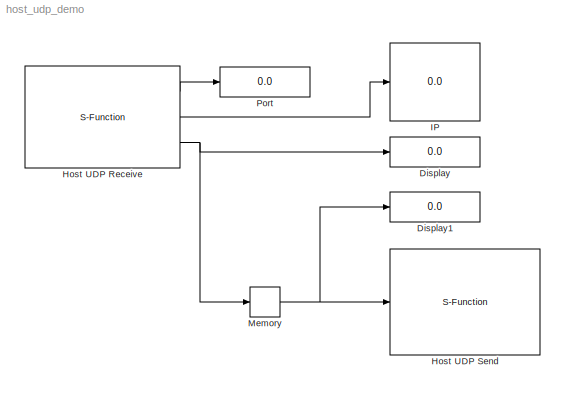
MODEL host_udp_demo
KIND model
BLOCK [Display] Display
  Decimation = 1
  Format = long
  Lockdown = off
  Ports = [1]
BLOCK [Display] Display1
  Decimation = 1
  Format = long
  Lockdown = off
  Ports = [1]
BLOCK [S-Function] Host UDP Receive
  EnableBusSupport = off
  FunctionName = waijung_socket
  MaskCallbackString = waijung_socket_callback('conf');|||waijung_socket_callback('netadapter');|||||waijung_socket_callback('datasource');|||waijung_socket_callback('datatype');|waijung_socket_callback('datatype');|waijung_socket_callback('datatype');|waijung_socket_callback('datatype');|waijung_socket_callback('datatype');|waijung_socket_callback('datatype');|waijung_socket_callback('datatype');|waijung_socket_callbac...<+99ch>
  MaskDescription = Port:\n - Port number to open for data receive.\nTransfer:\n - Blocking: CPU is blocked durring wait for data.\nTimeout:\n - Timeout in seconds for wait for data.
  MaskDisplay = text(0.05, 0.5, '[Host UDP Receive]\\nPort: 7\\nTs (sec): 0.001','ver','middle','hor','left'); port_label('output', 1,'Remote Port'); port_label('output', 2,'Remote IP(1:4)'); port_label('output', 3,'uint32 D0');
  MaskEnableString = on,off,on,on,off,on,off,on,on,on,on,on,on,on,on,on,on,on,on,on,on,off,on,on,on,on,on,on,on,on,off
  MaskHelp = web(fullfile(waijungdocroot,'waijung_socket_host_udp_receive.htm'), '-browser')
  MaskIconFrame = on
  MaskIconOpaque = on
  MaskIconRotate = none
  MaskIconUnits = normalized
  MaskInitialization = waijung_socket_callback('init');
  MaskPortRotate = default
  MaskPromptString = Configuration|Protocol|Port|Host Network Adapter|Address|Echo (Return the receiving data back to sender)|Transfer|Timeout (Seconds)|Data|Data type|Port width|Number of data port, type DOUBLE|Number of data port, type SINGLE|Number of data port, type INT8|Number of data port, type UINT8|Number of data port, type INT16|Number of data port, type UINT16|Number of data port, type INT32|Number of data p...<+244ch>
  MaskSelfModifiable = on
  MaskStyleString = popup(HostSend|HostReceive|TargetSend|TargetReceive),popup(TCP|UDP),edit,popup(Intel(R) 82579LM Gigabit Network Connection),edit,checkbox,popup(Blocking|Non-blocking),edit,popup(Ports|Vector|BufferStream),popup(double|single|int8|uint8|int16|uint16|int32|uint32),edit,edit,edit,edit,edit,edit,edit,edit,edit,edit,edit,edit,edit,edit,edit,edit,edit,edit,edit,edit,edit
  MaskTabNameString = ,,,,,,,,,,,,,,,,,,,,,,,,,,,,,,
  MaskToolTipString = on,on,on,on,on,on,on,on,on,on,on,on,on,on,on,on,on,on,on,on,on,on,on,on,on,on,on,on,on,on,on
  MaskTunableValueString = off,off,off,off,off,off,off,off,off,off,off,off,off,off,off,off,off,off,off,off,off,off,off,off,off,off,off,off,off,off,off
  MaskType = waijung_socket
  MaskValueString = HostReceive|UDP|7|Intel(R) 82579LM Gigabit Network Connection|192.168.1.10|off|Blocking|5|Ports|uint8|2|0|0|0|0|0|0|0|1|0|0.001|HostUDPReceive|[]|[]|{}|[5,3,7]|[1,4,]|{'Remote Port','Remote IP(1:4)','uint32 D0'}|0|[\"UDP\",\"7\",\"192\",\"168\",\"1\",\"21\",\"Non-blocking\",\"PortData\",\"uint8_t\",\"2\",\"Send\",\"off\"]|[7,2,1,5000,0]
  MaskVarAliasString = ,,,,,,,,,,,,,,,,,,,,,,,,,,,,,,
  MaskVariables = conf=&1;protocol=&2;port=&3;netadapter=&4;address=&5;echo=&6;transfer=&7;timeout=&8;datasource=&9;datatype=&10;datacount=&11;porttype_double=@12;porttype_single=@13;porttype_int8=@14;porttype_uint8=@15;porttype_int16=@16;porttype_uint16=@17;porttype_int32=@18;porttype_uint32=@19;portpinstr=&20;sampletime=@21;blockid=&22;inputporttype=@23;inputportwidth=@24;inputportlabel=&25;outputporttype=@26;out...<+77ch>
  MaskVisibilityString = off,off,on,on,on,off,on,on,on,off,off,on,on,on,on,on,on,on,on,off,on,off,off,off,off,off,off,off,off,off,off
  Parameters = conf,inputporttype,inputportwidth,outputporttype,outputportwidth,address,port,optionstring,sampletime,blockid,options
  Ports = [0, 3]
  Priority = 1
BLOCK [S-Function] Host UDP Send
  EnableBusSupport = off
  FunctionName = waijung_socket
  MaskCallbackString = waijung_socket_callback('conf');||waijung_socket_callback('conf');||waijung_socket_callback('blockid');||||||waijung_socket_callback('datasource');|||waijung_socket_callback('datatype');|waijung_socket_callback('datatype');|waijung_socket_callback('datatype');|waijung_socket_callback('datatype');|waijung_socket_callback('datatype');|waijung_socket_callback('datatype');|waijung_socket_callback('dat...<+94ch>
  MaskDescription = Destintion port:\n - Specify port number to send data packet to.\nDestination address:\n - IP address of destination.\nTransfer:\n Blocking: CPU is blocked during data sending.\n Non-Blocking: Not support for Host UDP send.
  MaskDisplay = text(0.95, 0.5, '[Host UDP Send]\\nAddr: 192.168.1.31\\nPort: 7\\nTs (sec): 0.001','ver','middle','hor','right'); port_label('input', 1,'D0 uint32');
  MaskEnableString = on,off,on,on,off,on,on,on,off,on,on,on,on,on,on,on,on,on,on,on,on,on,on,on,on,on,on,on,on,on,on,off
  MaskHelp = web(fullfile(waijungdocroot,'waijung_socket_host_udp_send.htm'), '-browser')
  MaskIconFrame = on
  MaskIconOpaque = on
  MaskIconRotate = none
  MaskIconUnits = normalized
  MaskInitialization = waijung_socket_callback('init');
  MaskPortRotate = default
  MaskPromptString = Configuration|Protocol|Variable Destination IP/Port|Host Network Adapter|Address|Destination port|Destination address|Echo (Return the receiving data back to sender)|Transfer|Timeout (Seconds)|Data|Data type|Port width|Number of data port, type DOUBLE|Number of data port, type SINGLE|Number of data port, type INT8|Number of data port, type UINT8|Number of data port, type INT16|Number of data port,...<+296ch>
  MaskSelfModifiable = on
  MaskStyleString = popup(HostSend|HostReceive|TargetSend|TargetReceive),popup(TCP|UDP),checkbox,popup(Intel(R) 82579LM Gigabit Network Connection),edit,edit,edit,checkbox,popup(Blocking|Non-blocking),edit,popup(Ports|Vector),popup(double|single|int8|uint8|int16|uint16|int32|uint32),edit,edit,edit,edit,edit,edit,edit,edit,edit,edit,edit,edit,edit,edit,edit,edit,edit,edit,edit,edit
  MaskTabNameString = ,,,,,,,,,,,,,,,,,,,,,,,,,,,,,,,
  MaskToolTipString = on,on,on,on,on,on,on,on,on,on,on,on,on,on,on,on,on,on,on,on,on,on,on,on,on,on,on,on,on,on,on,on
  MaskTunableValueString = off,off,off,off,off,off,off,off,off,off,off,off,off,off,off,off,off,off,off,off,off,off,off,off,off,off,off,off,off,off,off,off
  MaskType = waijung_socket
  MaskValueString = HostSend|UDP|off|Intel(R) 82579LM Gigabit Network Connection|192.168.1.10|7|192.168.1.31|off|Blocking|5|Ports|uint8|2|0|0|0|0|0|0|0|1|0|inf|[7]|[1]|{'D0 uint32'}|[]|[]|{}|0|[\"UDP\",\"7\",\"192\",\"168\",\"1\",\"21\",\"Non-blocking\",\"PortData\",\"uint8_t\",\"2\",\"Send\",\"off\"]|[7,2,0,5000,0]
  MaskVarAliasString = ,,,,,,,,,,,,,,,,,,,,,,,,,,,,,,,
  MaskVariables = conf=&1;protocol=&2;variableipport=&3;netadapter=&4;blockid=&5;port=&6;address=&7;echo=&8;transfer=&9;timeout=&10;datasource=&11;datatype=&12;datacount=&13;porttype_double=@14;porttype_single=@15;porttype_int8=@16;porttype_uint8=@17;porttype_int16=@18;porttype_uint16=@19;porttype_int32=@20;porttype_uint32=@21;portpinstr=&22;sampletime=@23;inputporttype=@24;inputportwidth=@25;inputportlabel=&26;out...<+96ch>
  MaskVisibilityString = off,off,off,on,on,on,on,off,on,off,on,off,off,on,on,on,on,on,on,on,on,off,on,off,off,off,off,off,off,off,off,off
  Parameters = conf,inputporttype,inputportwidth,outputporttype,outputportwidth,address,port,optionstring,sampletime,blockid,options
  Ports = [1]
  Priority = 0
BLOCK [Display] IP
  Decimation = 1
  Format = decimal (Stored Integer)
  Lockdown = off
  Ports = [1]
BLOCK [Memory] Memory
  InheritSampleTime = on
BLOCK [Display] Port
  Decimation = 1
  Format = long
  Lockdown = off
  Ports = [1]
LINE Host UDP Receive:1 -> Port:1
LINE Host UDP Receive:2 -> IP:1
NET Host UDP Receive:3 -> Display:1, Memory:1
NET Memory:1 -> Display1:1, Host UDP Send:1
note: NET lines group one-source signal fan-out (src -> all destinations, sorted); 1:1 wires keep LINE
